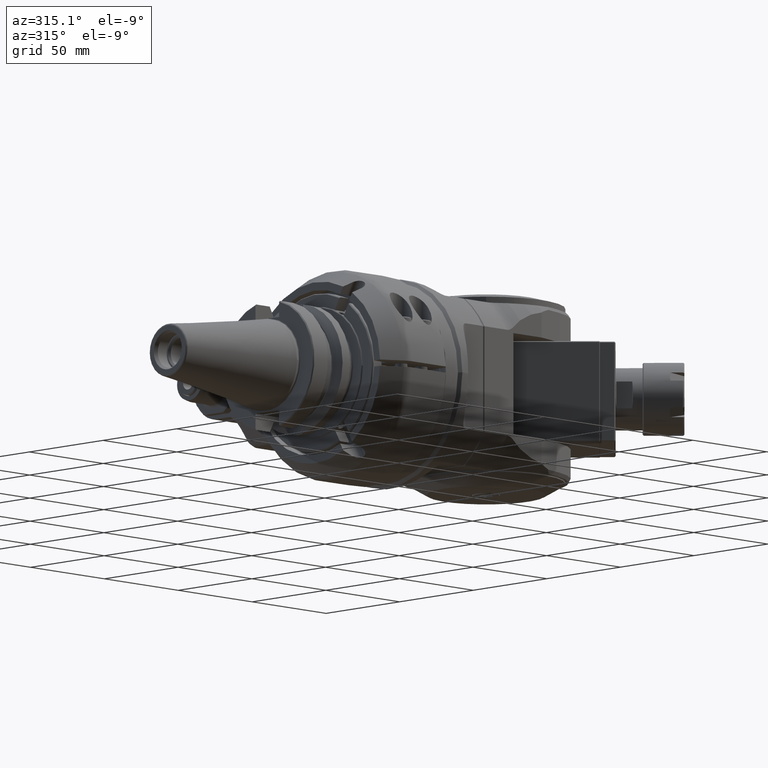
[diagram: clean part render]
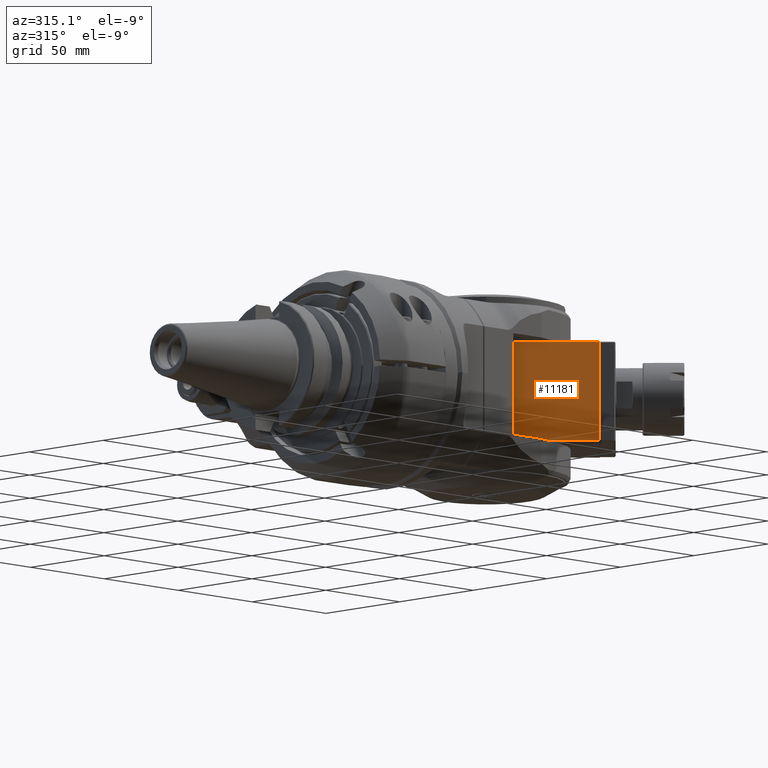
[diagram: same view with one face highlighted and labeled with its STEP entity id]
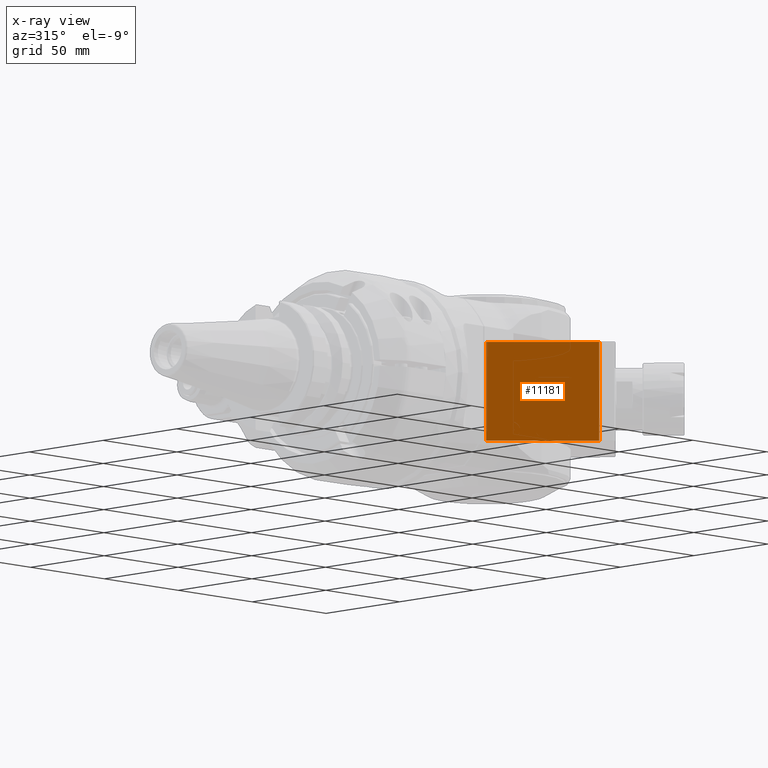
[diagram: x-ray of the same camera — body ghosted, the highlighted face saturated]
A machine part, auxiliary view. The second image highlights one B-rep face of the part: STEP entity #11181.
The next image is the same camera in x-ray: the body ghosted, the highlighted face saturated — about 1% of this face is hidden behind the body in this view.
In plain terms, the highlighted planar face has unit normal (-0.7071, -0.7071, -0).
Its self-contained STEP definition (entity closure, byte-faithful):
#657=PLANE('',#12280);
#1371=FACE_OUTER_BOUND('',#2104,.T.);
#2104=EDGE_LOOP('',(#9698,#9699,#9700,#9701));
#3496=LINE('',#49466,#4310);
#3500=LINE('',#49475,#4314);
#3502=LINE('',#49479,#4316);
#3503=LINE('',#49480,#4317);
#4310=VECTOR('',#14867,54.25);
#4314=VECTOR('',#14877,48.);
#4316=VECTOR('',#14881,48.);
#4317=VECTOR('',#14882,54.25);
#5354=VERTEX_POINT('',#49462);
#5355=VERTEX_POINT('',#49464);
#5357=VERTEX_POINT('',#49474);
#5358=VERTEX_POINT('',#49478);
#6850=EDGE_CURVE('',#5355,#5354,#3496,.T.);
#6854=EDGE_CURVE('',#5354,#5357,#3500,.T.);
#6856=EDGE_CURVE('',#5358,#5355,#3502,.T.);
#6857=EDGE_CURVE('',#5358,#5357,#3503,.T.);
#9698=ORIENTED_EDGE('',*,*,#6854,.F.);
#9699=ORIENTED_EDGE('',*,*,#6850,.F.);
#9700=ORIENTED_EDGE('',*,*,#6856,.F.);
#9701=ORIENTED_EDGE('',*,*,#6857,.T.);
#11181=ADVANCED_FACE('',(#1371),#657,.T.);
#12280=AXIS2_PLACEMENT_3D('',#49477,#14879,#14880);
#14867=DIRECTION('',(0.707106781186548,0.,0.707106781186548));
#14877=DIRECTION('',(0.,-1.,0.));
#14879=DIRECTION('center_axis',(-0.707106781186548,0.,0.707106781186548));
#14880=DIRECTION('ref_axis',(0.707106781186548,0.,0.707106781186548));
#14881=DIRECTION('',(0.,1.,0.));
#14882=DIRECTION('',(0.707106781186548,0.,0.707106781186548));
#49462=CARTESIAN_POINT('',(128.0364267403,24.,55.6846590184412));
#49464=CARTESIAN_POINT('',(89.6758838609302,24.,17.324116139071));
#49466=CARTESIAN_POINT('',(89.6758838609302,24.,17.324116139071));
#49474=CARTESIAN_POINT('',(128.0364267403,-24.,55.6846590184412));
#49475=CARTESIAN_POINT('',(128.0364267403,24.,55.6846590184412));
#49477=CARTESIAN_POINT('Origin',(128.213203435597,0.,55.8614357137379));
#49478=CARTESIAN_POINT('',(89.6758838609302,-24.,17.324116139071));
#49479=CARTESIAN_POINT('',(89.6758838609302,-24.,17.324116139071));
#49480=CARTESIAN_POINT('',(89.6758838609302,-24.,17.324116139071));